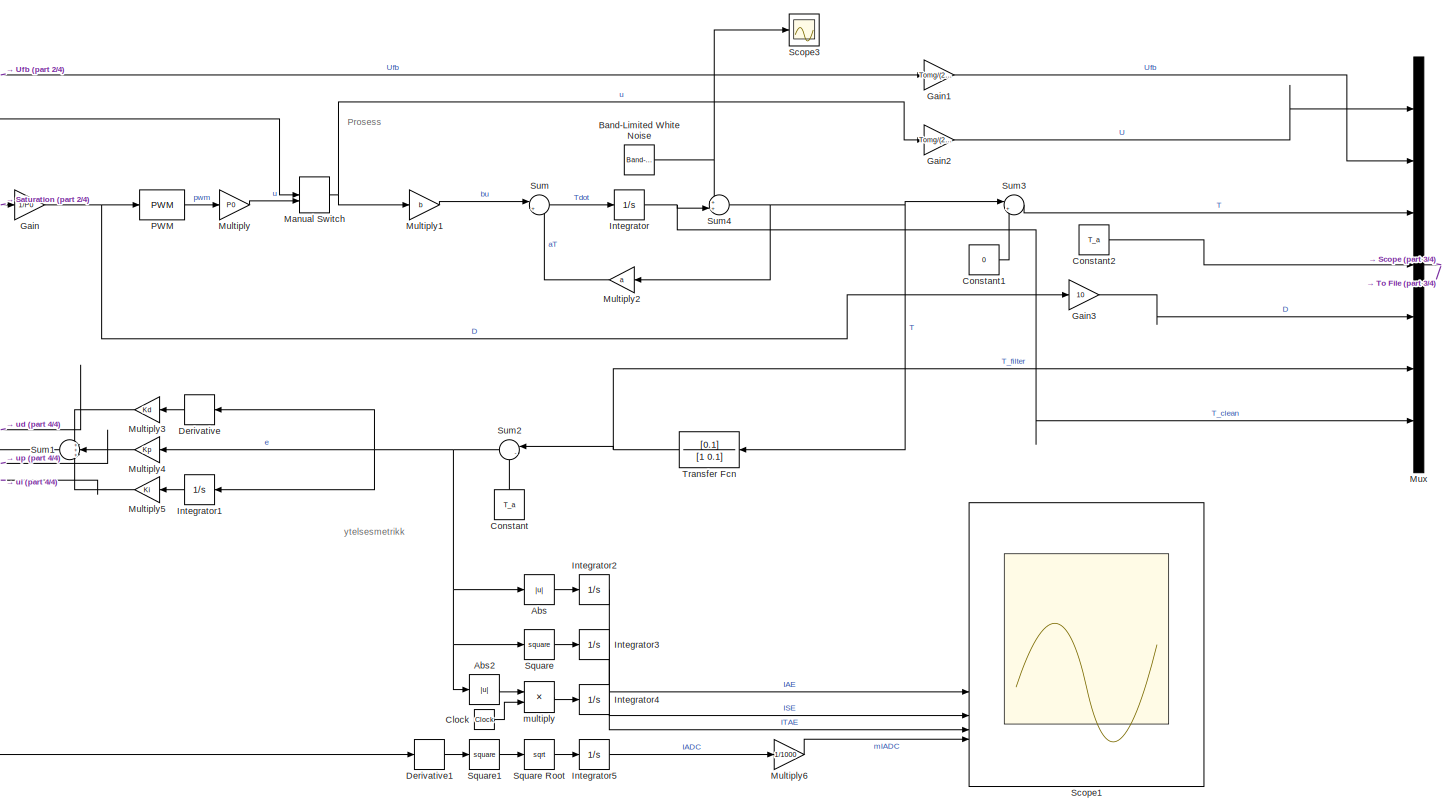
[diagram: root canvas - part 1/4, center side, full height]
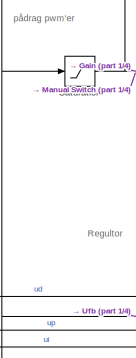
[diagram: root canvas - part 2/4, middle left region]
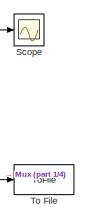
[diagram: root canvas - part 3/4, middle right region]
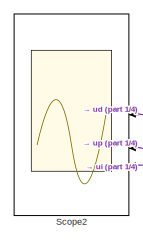
[diagram: root canvas - part 4/4, middle left region]
MODEL slx_37f680072a61
KIND model
CONFIG AbsTol = auto
CONFIG EnableMultiTasking = off
CONFIG FixedStep = auto
CONFIG MaxStep = auto
CONFIG MinStep = 0.01
CONFIG RelTol = 1e-3
CONFIG SampleTimeConstraint = Unconstrained
CONFIG SolverName = VariableStepAuto
CONFIG StartTime = 0.0
CONFIG StopTime = 10000
BLOCK [Abs] Abs
  SaturateOnIntegerOverflow = off
BLOCK [Abs] Abs2
  SaturateOnIntegerOverflow = off
BLOCK [Reference] Band-Limited White Noise  REF=simulink/Sources/Band-Limited
White Noise
  SourceBlock = simulink/Sources/Band-Limited\nWhite Noise
  SourceType = Band-Limited White Noise.
BLOCK [Clock] Clock
BLOCK [Constant] Constant
  NameLocation = right
  Value = T_a
BLOCK [Constant] Constant1
  Value = 0
BLOCK [Constant] Constant2
  Value = T_a
BLOCK [Derivative] Derivative
BLOCK [Derivative] Derivative1
BLOCK [Gain] Gain
  Gain = 1/P0
BLOCK [Gain] Gain1
  Gain = Tomg/(2*P0)
BLOCK [Gain] Gain2
  Gain = Tomg/(2*P0)
BLOCK [Gain] Gain3
  Gain = 10
BLOCK [Integrator] Integrator
  InitialCondition = T_0
BLOCK [Integrator] Integrator1
BLOCK [Integrator] Integrator2
BLOCK [Integrator] Integrator3
BLOCK [Integrator] Integrator4
BLOCK [Integrator] Integrator5
BLOCK [ManualSwitch] Manual Switch
  CurrentSetting = 0
BLOCK [Gain] Multiply
  Gain = P0
BLOCK [Gain] Multiply1
  Gain = b
BLOCK [Gain] Multiply2
  Gain = a
BLOCK [Gain] Multiply3
  Gain = Kd
BLOCK [Gain] Multiply4
  Gain = Kp
BLOCK [Gain] Multiply5
  Gain = Ki
BLOCK [Gain] Multiply6
  Gain = 1/1000
BLOCK [Mux] Mux
  DisplayOption = bar
  Inputs = 7
BLOCK [Reference] PWM  REF=simulink/Discontinuities/PWM
  DisableCoverage = on
  SourceBlock = simulink/Discontinuities/PWM
  SourceType = PWM
BLOCK [Saturate] Saturation
  LowerLimit = 0
  UpperLimit = P0
BLOCK [Scope] Scope
  Floating = off
  NumInputPorts = 1
  ScopeSpecificationString = Simulink.scopes.TimeScopeBlockCfg('CurrentConfiguration', extmgr.ConfigurationSet(extmgr.Configuration('Core','General UI',true),extmgr.Configuration('Core','Source UI',true),extmgr.Configuration('Sources','WiredSimulink',true,'DataLoggingVariableName','ScopeData1'),extmgr.Configuration('Visuals','Time Domain',true,'SerializedDisplays',{struct('MinYLimReal','-5.9375','MaxYLimReal','53.4375','YLabe...<+1572ch>
BLOCK [Scope] Scope1
  Floating = off
  NumInputPorts = 5
  ScopeSpecificationString = Simulink.scopes.TimeScopeBlockCfg('CurrentConfiguration', extmgr.ConfigurationSet(extmgr.Configuration('Core','General UI',true),extmgr.Configuration('Core','Source UI',true),extmgr.Configuration('Sources','WiredSimulink',true,'DataLoggingVariableName','ScopeData1'),extmgr.Configuration('Visuals','Time Domain',true,'SerializedDisplays',{struct('MinYLimReal','-723497.62311','MaxYLimReal','6511478.6...<+1630ch>
BLOCK [Scope] Scope2
  Floating = off
  NumInputPorts = 3
  ScopeSpecificationString = Simulink.scopes.TimeScopeBlockCfg('CurrentConfiguration', extmgr.ConfigurationSet(extmgr.Configuration('Core','General UI',true),extmgr.Configuration('Core','Source UI',true),extmgr.Configuration('Sources','WiredSimulink',true,'DataLoggingVariableName','ScopeData1'),extmgr.Configuration('Visuals','Time Domain',true,'SerializedDisplays',{struct('MinYLimReal','-196.80627','MaxYLimReal','1751.77022',...<+1531ch>
BLOCK [Scope] Scope3
  Floating = off
  NumInputPorts = 1
  ScopeSpecificationString = Simulink.scopes.TimeScopeBlockCfg('CurrentConfiguration', extmgr.ConfigurationSet(extmgr.Configuration('Core','General UI',true),extmgr.Configuration('Core','Source UI',true),extmgr.Configuration('Sources','WiredSimulink',true,'DataLoggingVariableName','ScopeData2'),extmgr.Configuration('Visuals','Time Domain',true,'SerializedDisplays',{struct('MinYLimReal','-0.39561','MaxYLimReal','0.38947','YLab...<+1472ch>
BLOCK [Math] Square
  Operator = square
BLOCK [Sqrt] Square Root
BLOCK [Math] Square1
  Operator = square
BLOCK [Sum] Sum
  Inputs = |++
BLOCK [Sum] Sum1
  Inputs = +++
BLOCK [Sum] Sum2
  Inputs = |-+
BLOCK [Sum] Sum3
  Inputs = |+-
BLOCK [Sum] Sum4
  Inputs = ++|
BLOCK [ToFile] To File
  Filename = system_data.mat
BLOCK [TransferFcn] Transfer Fcn
  Denominator = [1 0.1]
  Numerator = [0.1]
BLOCK [Product] multiply
  Inputs = **
ANNOTATION (root): Prosess
ANNOTATION (root): Regultor
ANNOTATION (root): pådrag pwm'er
ANNOTATION (root): ytelsesmetrikk
LINE Abs2:1 -> multiply:1
LINE Abs:1 -> Integrator2:1
NET Band-Limited White Noise:1 -> Scope3:1, Sum4:1
LINE Clock:1 -> multiply:2
LINE Constant1:1 -> Sum3:2
LINE Constant2:1 -> Mux:4
LINE Constant:1 -> Sum2:2
LINE Derivative1:1 -> Square1:1
LINE Derivative:1 -> Multiply3:1
LINE Gain1:1 -> Mux:2
LINE Gain2:1 -> Mux:1
LINE Gain3:1 -> Mux:5
NET Gain:1 -> Gain3:1, PWM:1
LINE Integrator1:1 -> Multiply5:1
LINE Integrator2:1 -> Scope1:2
LINE Integrator3:1 -> Scope1:3
LINE Integrator4:1 -> Scope1:4
LINE Integrator5:1 -> Multiply6:1
NET Integrator:1 -> Mux:7, Sum4:2
NET Manual Switch:1 -> Gain2:1, Multiply1:1
LINE Multiply1:1 -> Sum:1
LINE Multiply2:1 -> Sum:2
NET Multiply3:1 -> Scope2:1, Sum1:1
NET Multiply4:1 -> Scope2:2, Sum1:2
NET Multiply5:1 -> Scope2:3, Sum1:3
LINE Multiply6:1 -> Scope1:5
LINE Multiply:1 -> Manual Switch:2
NET Mux:1 -> Scope:1, To File:1
LINE PWM:1 -> Multiply:1
NET Saturation:1 -> Gain:1, Manual Switch:1
LINE Square Root:1 -> Integrator5:1
LINE Square1:1 -> Square Root:1
LINE Square:1 -> Integrator3:1
NET Sum1:1 -> Derivative1:1, Gain1:1, Saturation:1
NET Sum2:1 -> Abs2:1, Abs:1, Derivative:1, Integrator1:1, Multiply4:1, Square:1
LINE Sum3:1 -> Mux:3
NET Sum4:1 -> Multiply2:1, Sum3:1, Transfer Fcn:1
LINE Sum:1 -> Integrator:1
NET Transfer Fcn:1 -> Mux:6, Sum2:1
LINE multiply:1 -> Integrator4:1
note: NET lines group one-source signal fan-out (src -> all destinations, sorted); 1:1 wires keep LINE
